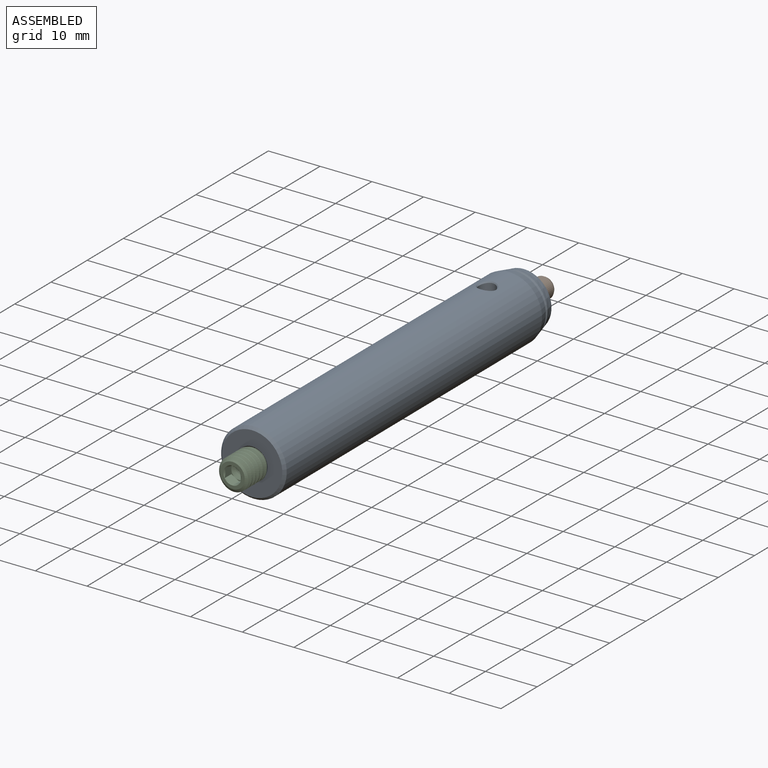
[diagram: assembled view]
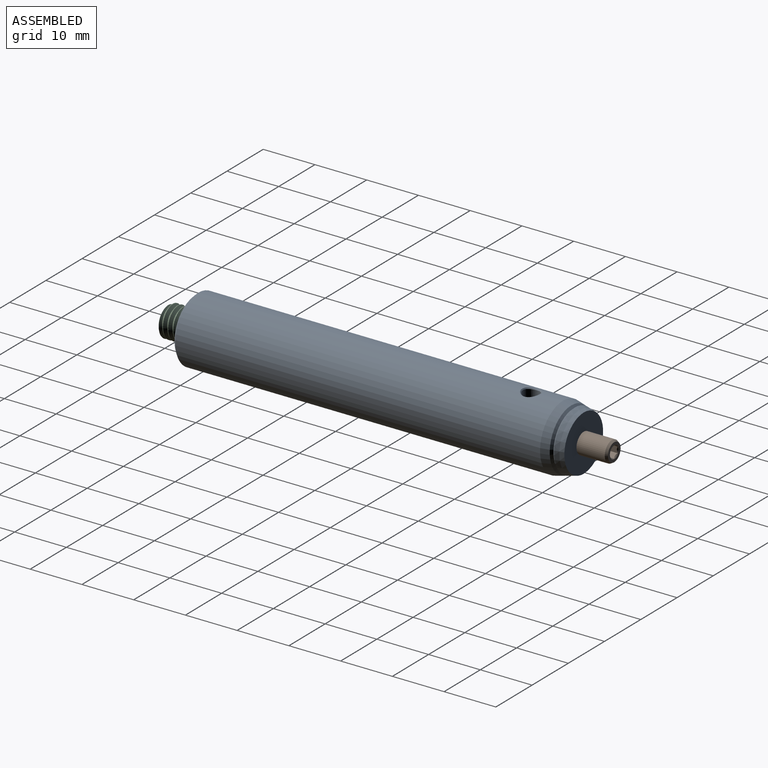
[diagram: assembled view, second angle]
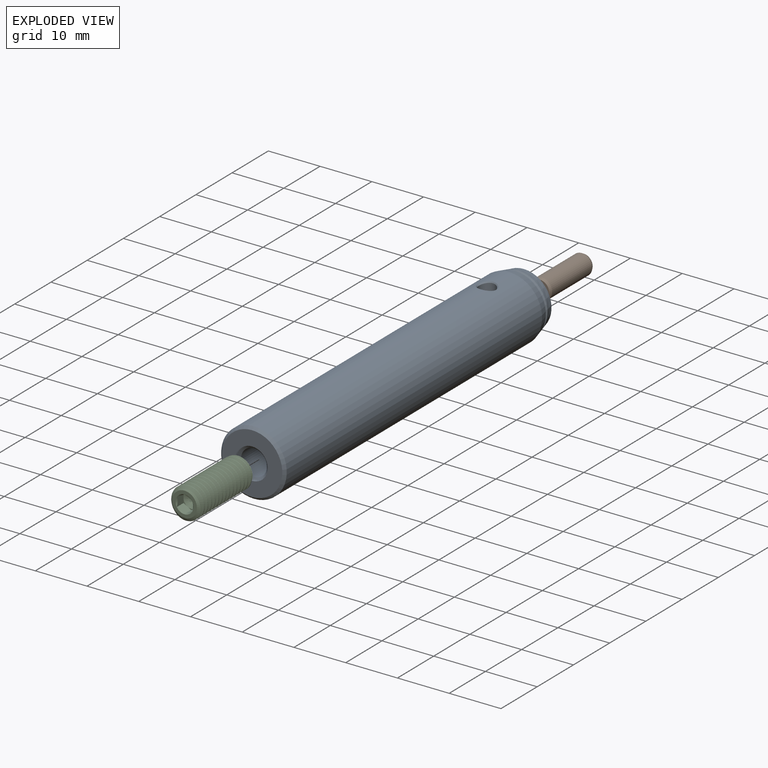
[diagram: exploded view]
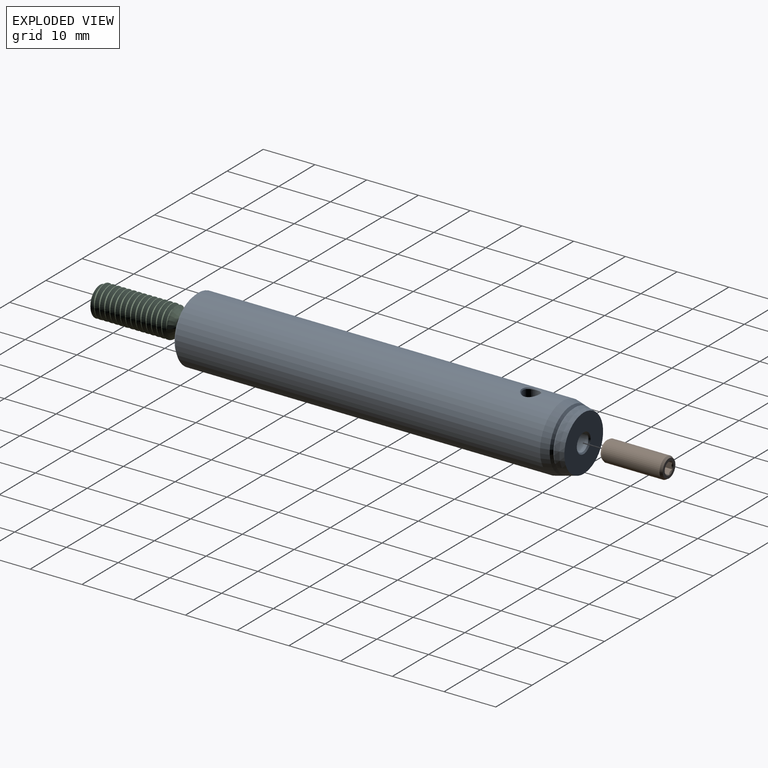
[diagram: exploded view, second angle]
ASSEMBLY  parts=3 mates=2
PART A: 17 faces, bbox 12.7x75x12.7 mm
  f0: bspline ~3.57x3.46mm, area 2.8mm2, adj f4,f10
  f1: bspline ~3.57x3.46mm, area 2.8mm2, adj f4,f10
  f2: cone r=1.65mm half-angle=45deg, axis (0,1,0), area 4mm2, adj f8,f15
  f3: cone r=2.5mm half-angle=45deg, axis (0,-1,0), area 12.4mm2, adj f6,f16
  f4: cylinder r=1.59mm len=12.26mm, axis (0,0,1), area 119.8mm2, adj f0,f1
  f5: cone r=2.5mm half-angle=59deg, axis (0,-1,0), area 22.9mm2, adj f6
  f6: cylinder r=2.5mm len=10.03mm, axis (0,-1,0), area 157.6mm2, adj f3,f5
  f7: cone r=1.65mm half-angle=59deg, axis (0,1,0), area 10mm2, adj f8
  f8: cylinder r=1.65mm len=5.84mm, axis (0,1,0), area 60.6mm2, adj f2,f7
  f9: cone r=5.83mm half-angle=45deg, axis (0,1,0), area 27.5mm2, adj f10,f16
  f10: cylinder r=6.34mm len=70.49mm, axis (0,1,0), area 2786.9mm2, adj f0,f1,f9,f11
  f11: cone r=6.34mm half-angle=13.9deg, axis (0,-1,0), area 63.6mm2, adj f10,f12
  f12: cone r=5.94mm half-angle=46.9deg, axis (0,-1,0), area 21.8mm2, adj f11,f13
  f13: cone r=5.5mm half-angle=43.1deg, axis (0,1,0), area 14mm2, adj f12,f14
  f14: cone r=5.77mm half-angle=13.9deg, axis (0,-1,0), area 61.5mm2, adj f13,f15
  f15: plane 10.69x10.69mm, normal (0,1,0), area 78.4mm2, adj f2,f14
  f16: plane 11.66x11.66mm, normal (0,-1,0), area 78.3mm2, adj f3,f9
PART B: 33 faces, bbox 4.1x12.1x4.1 mm
  f0: cone r=1mm half-angle=59deg, axis (0,-1,0), area 3.7mm2, adj f21,f22,f23,f24,f25,f26
  f1: cone r=1000mm half-angle=45deg, axis (0,-1,0), area 1.5mm2, adj f7,f27,f28,f29,f30,f31,f32
  f2: cone r=1mm half-angle=59deg, axis (0,1,0), area 3.7mm2, adj f9,f10,f11,f12,f13,f14
  f3: cone r=1.21mm half-angle=45deg, axis (0,1,0), area 1.5mm2, adj f8,f15,f16,f17,f18,f19,f20
  f4: cone r=2mm half-angle=30deg, axis (0,-1,0), area 6mm2, adj f6,f8
  f5: cone r=1.75mm half-angle=30deg, axis (0,1,0), area 6mm2, adj f6,f7
  f6: cylinder r=2mm len=11.12mm, axis (0,-1,0), area 139.7mm2, adj f4,f5
  f7: plane 3.49x3.49mm, normal (0,-1,0), area 5mm2, adj f1,f5
  f8: plane 3.49x3.49mm, normal (0,1,0), area 5mm2, adj f3,f4
  f9: plane 0.87x0.5mm, normal (0,1,0), area 0.1mm2, adj f2,f19,f20
  f10: plane 0.87x0.5mm, normal (0,1,0), area 0.1mm2, adj f2,f18,f19
  f11: plane 1x0.29mm, normal (0,1,0), area 0.1mm2, adj f2,f17,f18
  f12: plane 0.87x0.5mm, normal (0,1,0), area 0.1mm2, adj f2,f16,f17
  f13: plane 1x0.29mm, normal (0,1,0), area 0.1mm2, adj f2,f15,f20
  f14: plane 0.87x0.5mm, normal (0,1,0), area 0.1mm2, adj f2,f15,f16
  f15: plane 2.85x1.11mm, normal (0.5,0,0.87), area 3mm2, adj f3,f13,f14,f16,f20
  f16: plane 2.74x1.16mm, normal (1,0,0), area 3mm2, adj f3,f12,f14,f15,f17
  f17: plane 2.74x1mm, normal (0.5,0,-0.87), area 3.1mm2, adj f3,f11,f12,f16,f18
  f18: plane 2.85x1.11mm, normal (-0.5,0,-0.87), area 3mm2, adj f3,f10,f11,f17,f19
  f19: plane 2.74x1.16mm, normal (-1,0,0), area 3.1mm2, adj f3,f9,f10,f18,f20
  f20: plane 2.74x1mm, normal (-0.5,0,0.87), area 3mm2, adj f3,f9,f13,f15,f19
  f21: plane 1x0.29mm, normal (0,-1,0), area 0.1mm2, adj f0,f31,f32
  f22: plane 0.87x0.5mm, normal (0,-1,0), area 0.1mm2, adj f0,f30,f31
  f23: plane 0.87x0.5mm, normal (0,-1,0), area 0.1mm2, adj f0,f29,f30
  f24: plane 1x0.29mm, normal (0,-1,0), area 0.1mm2, adj f0,f28,f29
  f25: plane 0.87x0.5mm, normal (0,-1,0), area 0.1mm2, adj f0,f27,f32
  f26: plane 0.87x0.5mm, normal (0,-1,0), area 0.1mm2, adj f0,f27,f28
  f27: plane 2.74x1.16mm, normal (-1,0,0), area 3mm2, adj f1,f25,f26,f28,f32
  f28: plane 2.85x1.11mm, normal (-0.5,0,-0.87), area 3mm2, adj f1,f24,f26,f27,f29
  f29: plane 2.74x1mm, normal (0.5,0,-0.87), area 3.1mm2, adj f1,f23,f24,f28,f30
  f30: plane 2.74x1.16mm, normal (1,0,0), area 3mm2, adj f1,f22,f23,f29,f31
  f31: plane 2.85x1.11mm, normal (0.5,0,0.87), area 3mm2, adj f1,f21,f22,f30,f32
  f32: plane 2.74x1mm, normal (-0.5,0,0.87), area 3mm2, adj f1,f21,f25,f27,f31
PART C: 27 faces, bbox 6.7x6.7x17 mm
  f0: cone r=1.5mm half-angle=60deg, axis (0,0,1), area 8.2mm2, adj f6,f7,f8,f9,f10,f20
  f1: cone r=1.73mm half-angle=45deg, axis (0,0,1), area 0.3mm2, adj f11,f25
  f2: cone r=1664.28mm half-angle=59deg, axis (0,0,-1), area 9.9mm2, adj f3
  f3: cone r=1.64mm half-angle=45deg, axis (0,0,1), area 20mm2, adj f2,f4,f12,f13,f14
  f4: cylinder r=3mm len=14.22mm, axis (0,0,1), area 33.5mm2, adj f3,f5,f12,f14
  f5: cone r=3mm half-angle=55deg, axis (0,0,-1), area 5.7mm2, adj f4,f11,f12,f14
  f6: plane 1.3x0.75mm, normal (0,0,1), area 0.1mm2, adj f0,f21,f22
  f7: plane 1.5x0.43mm, normal (0,0,1), area 0.1mm2, adj f0,f21,f26
  f8: plane 1.3x0.75mm, normal (0,0,1), area 0.1mm2, adj f0,f25,f26
  f9: plane 1.3x0.75mm, normal (0,0,1), area 0.1mm2, adj f0,f24,f25
  f10: plane 1.5x0.43mm, normal (0,0,1), area 0.1mm2, adj f0,f23,f24
  f11: plane 5.37x5.33mm, normal (0,0,1), area 8.6mm2, adj f1,f5,f12,f13,f14,f15,f16,f17
  f12: bspline ~15.7x5.96mm, area 186.2mm2, adj f3,f4,f5,f11,f13
  f13: cylinder r=2.35mm len=15.29mm, axis (0,0,-1), area 28.4mm2, adj f3,f11,f12,f14
  f14: bspline ~15.67x6mm, area 186.6mm2, adj f3,f4,f5,f11,f13
  f15: cone r=1.73mm half-angle=45deg, axis (0,0,1), area 0mm2, adj f11,f21
  f16: cone r=1.73mm half-angle=45deg, axis (0,0,1), area 0mm2, adj f11,f22
  f17: cone r=1.73mm half-angle=45deg, axis (0,0,1), area 0mm2, adj f11,f23
  f18: cone r=1.73mm half-angle=45deg, axis (0,0,1), area 0mm2, adj f11,f24
  f19: cone r=1.73mm half-angle=45deg, axis (0,0,1), area 0mm2, adj f11,f26
  f20: plane 1.3x0.75mm, normal (0,0,1), area 0.1mm2, adj f0,f22,f23
  f21: plane 2.53x2.16mm, normal (0.5,-0.87,0), area 3mm2, adj f6,f7,f15,f22,f26
  f22: plane 2.53x2.39mm, normal (1,0,0), area 3mm2, adj f6,f16,f20,f21,f23
  f23: plane 2.53x2.16mm, normal (0.5,0.87,0), area 3mm2, adj f10,f17,f20,f22,f24
  f24: plane 2.53x2.16mm, normal (-0.5,0.87,0), area 3mm2, adj f9,f10,f18,f23,f25
  f25: plane 2.04x1.9mm, normal (-1,0,0), area 3mm2, adj f1,f8,f9,f24,f26
  f26: plane 2.53x2.16mm, normal (-0.5,-0.87,0), area 3mm2, adj f7,f8,f19,f21,f25
PLACE A rot(axis=(1,0,0),0deg) t=(34.51,-40.87,10.09)mm
PLACE B rot(axis=(1,0,0),0deg) t=(34.51,-39.92,10.09)mm
PLACE C rot(axis=(1,0,0),90deg) t=(34.51,-38.82,10.09)mm
MATE fastened A.f2 <-> C.f3  axis (0,-1,0) through (34.51,-30.33,10.09)mm
MATE fastened B.f0 <-> A.f2  axis (0,-1,0) through (34.51,28.04,10.09)mm
